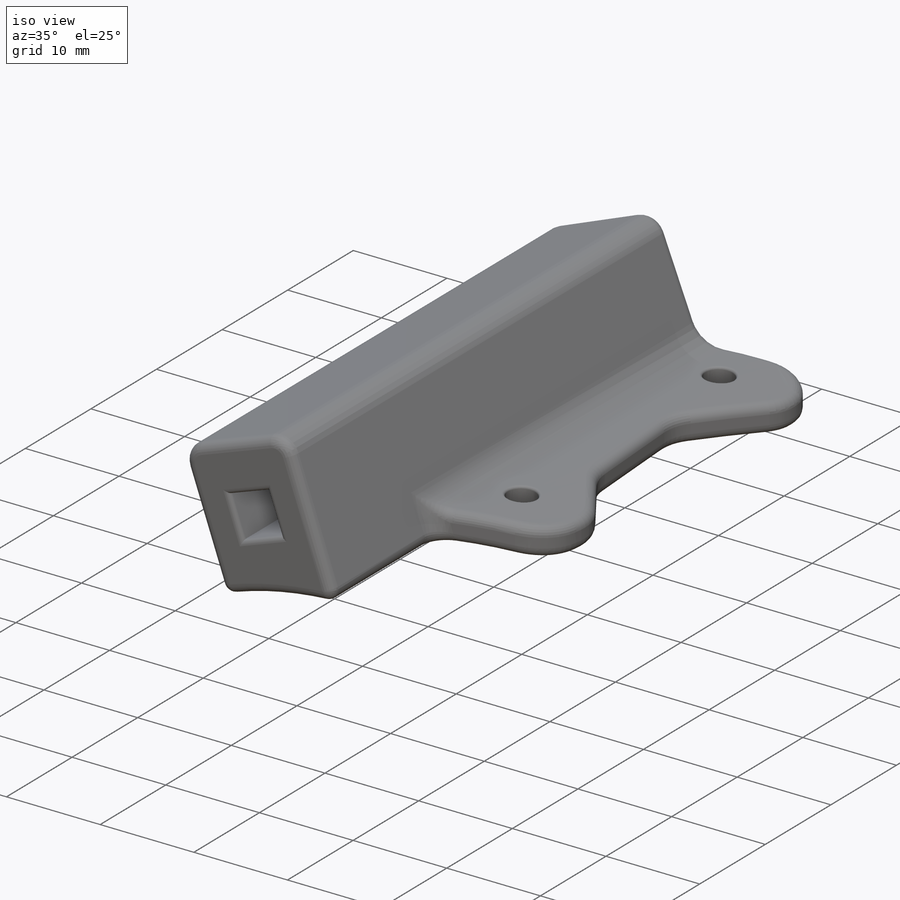
[diagram: iso view]
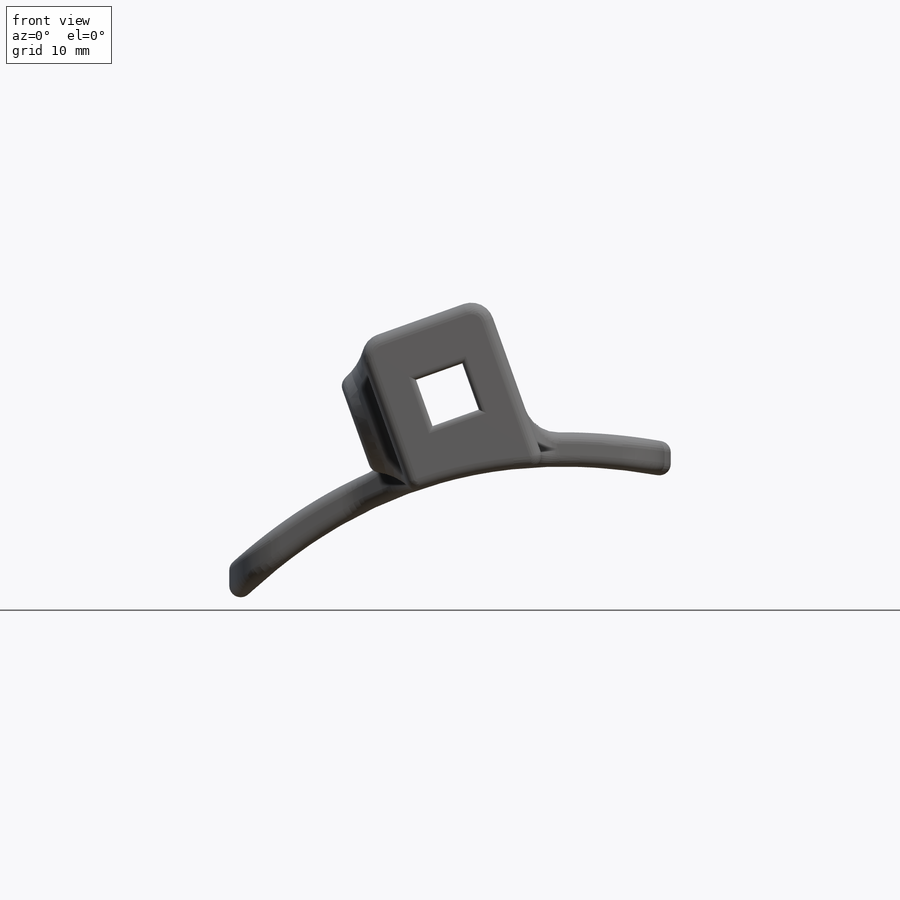
[diagram: front view]
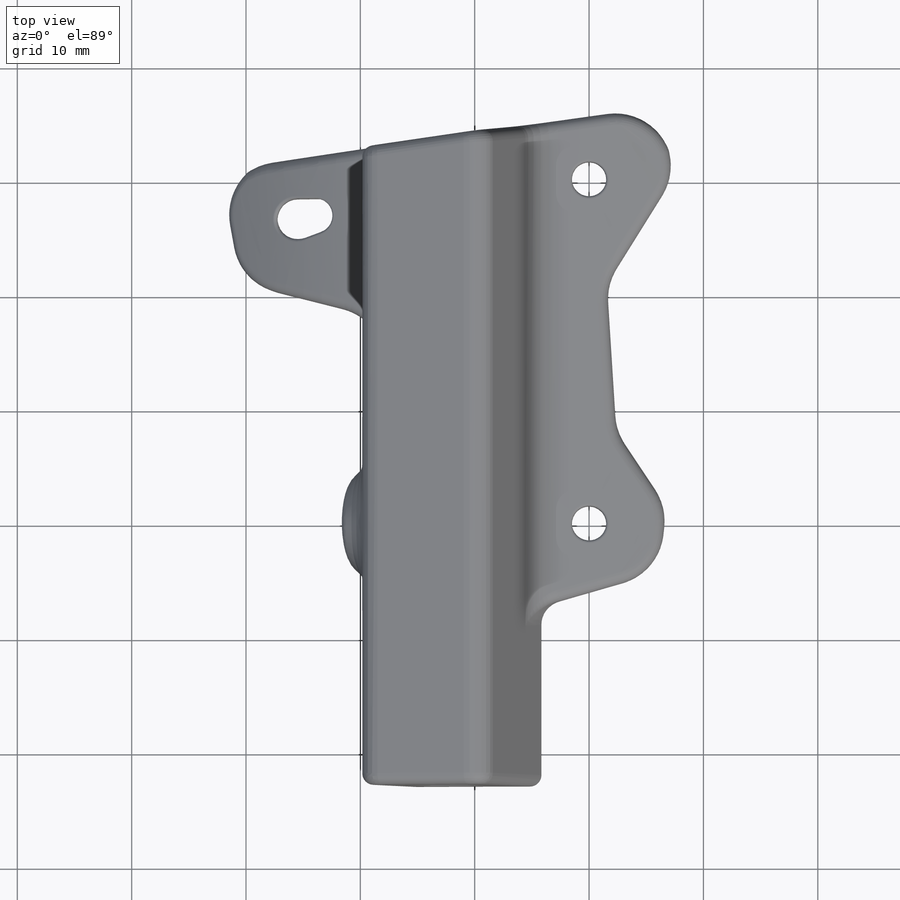
[diagram: top view]
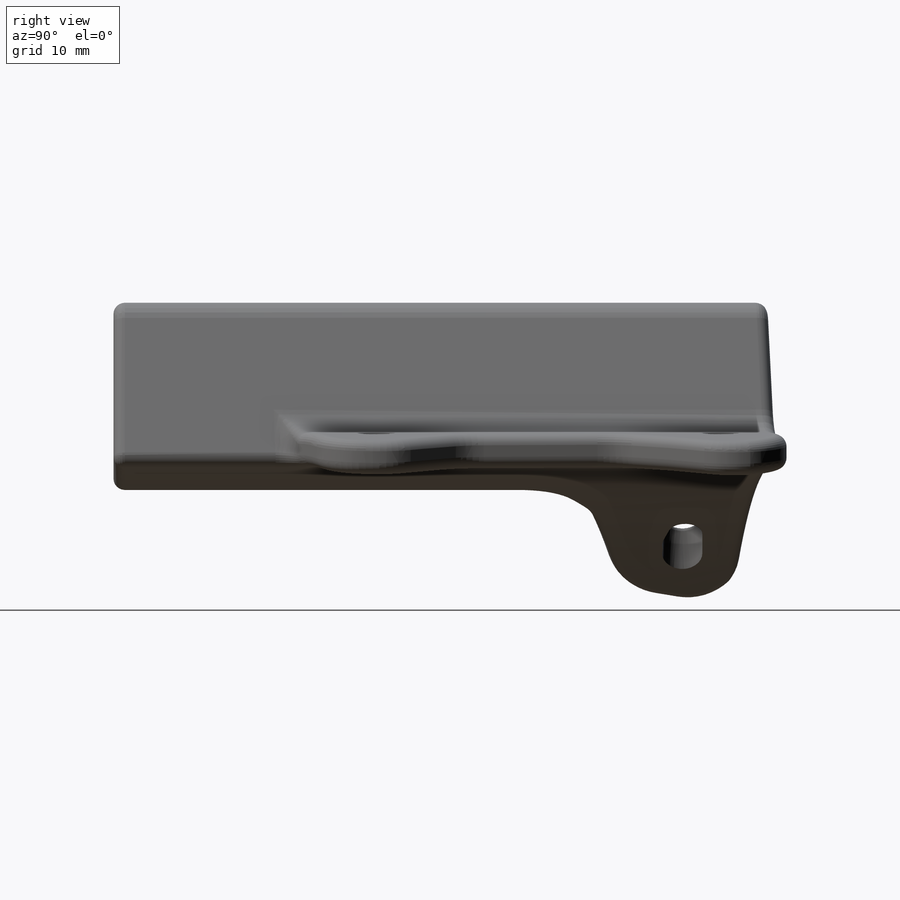
[diagram: right view]
SOLIDWORKS PART (.sldprt)
format: sldprt  version: not decoded by parser v0  size: 4,966,912 bytes
history: native  units: mm
features: sketch x16, fillet x13, cut_extrude x8, extrude x3, material x1, plane x1 (+13 scaffold rows collapsed)
feature tree (55):
  scaffold x13  (default folders/planes/origin — collapsed)
  material  "Material <not specified>"
  sketch  "Top Img"
  sketch  "Front Img"
  sketch  "Sketch Picture2"
  plane  "Lower Top"  Offset=30mm
  sketch  "Ref - Top"
  sketch  "Sketch Picture6"
  sketch  "Holes"  dims[c1.D1=~1.912716mm c1.D2=15.0mm c1.D3=3.0mm c1.D4=3.0mm c1.D5=3.0mm c1.D6=~1.881923mm c1.D8=~1.847296mm c2.D1=30.1mm c2.D2=27.0mm c2.D6=~1.471327mm c3.D6=170.0deg c3.D7=1.5mm c3.D8=24.0mm]
  sketch  "Sketch4"  dims[c1.D1=~28.084629mm c2.D1=8.0deg c2.D2=7.0mm]
  extrude  "Boss-Extrude2"  Depth=6mm
  cut_extrude  "Cut-Extrude1"  [1 undecoded]
  sketch  "Sketch5"  dims[D1=3.0mm]
  cut_extrude  "Cut-Extrude3"  [1 undecoded]
  sketch  "Sketch15"  dims[c1.D1=10.0mm c1.D2=~10.932937mm c2.D2=110.0deg c2.D3=16.0mm c2.D4=12.0mm c2.D5=6.0mm c2.D6=~18.027756mm]
  extrude  "Boss-Extrude4"  Depth=23mm
  sketch  "Sketch16"  dims[D1=3.0mm]
  cut_extrude  "Cut-Extrude6"  Depth=100mm
  sketch  "Sketch18"  dims[D1=7.0mm D2=4.3mm D3=4.3mm D4=6.0mm]
  cut_extrude  "Cut-Extrude7"  Depth=100mm
  sketch  "Sketch19"
  cut_extrude  "Cut-Extrude8"  Depth=100mm
  sketch  "Sketch21"  dims[c1.D1=4.25mm c1.D3=~1.514289mm c1.D2=30.0mm c2.D3=23.0mm c2.D2=20.0mm]
  cut_extrude  "Cut-Extrude10"  Depth=3mm
  cut_extrude  "Cut-Extrude11"  [1 undecoded]
  sketch  "Sketch21<2>"  dims[D1=15.0mm D19=10.0mm]
  sketch  "Sketch22"  dims[D1=26.0mm D2=20.0mm]
  cut_extrude  "Cut-Extrude12"  Depth=2mm
  fillet  "Fillet5"  Radius=5mm
  fillet  "Fillet10"  Radius=0.5mm
  fillet  "Fillet12"  Radius=0.25mm
  fillet  "Fillet14"  Radius=0.25mm
  fillet  "Fillet18"  Radius=5mm
  fillet  "Fillet19"  Radius=2mm
  fillet  "Fillet20"  Radius=3mm
  fillet  "Fillet21"  Radius=1mm
  fillet  "Fillet26"  Radius=1mm
  fillet  "Fillet27"  Radius=2mm
  fillet  "Fillet28"  Radius=1mm
  sketch  "Sketch23"  dims[D1=9.0mm]
  extrude  "Boss-Extrude5"  Depth=2.5mm
  fillet  "Fillet24"  Radius=1mm
  fillet  "Fillet25"  Radius=5mm
decode coverage: 31 of 40 modeling features carry decoded parameters
note: ~ marks probable driven/reference dimensions
note: 3 parameter values undecoded
summary: no parameter record found for 3 features
note: suppression state not decoded; provenance and decode notes live in map.json
